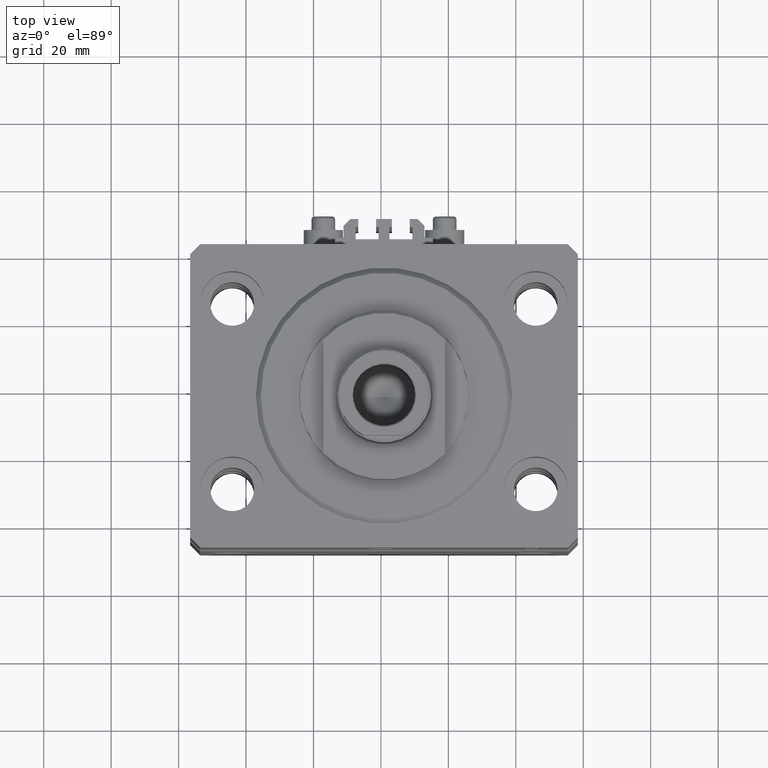
[diagram: clean part render]
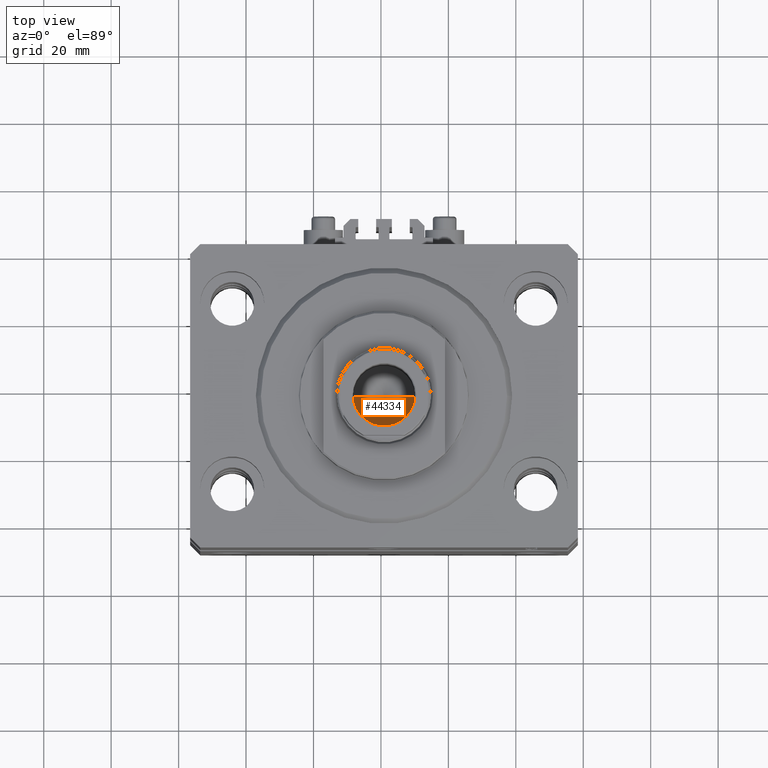
[diagram: same view with one face highlighted and labeled with its STEP entity id]
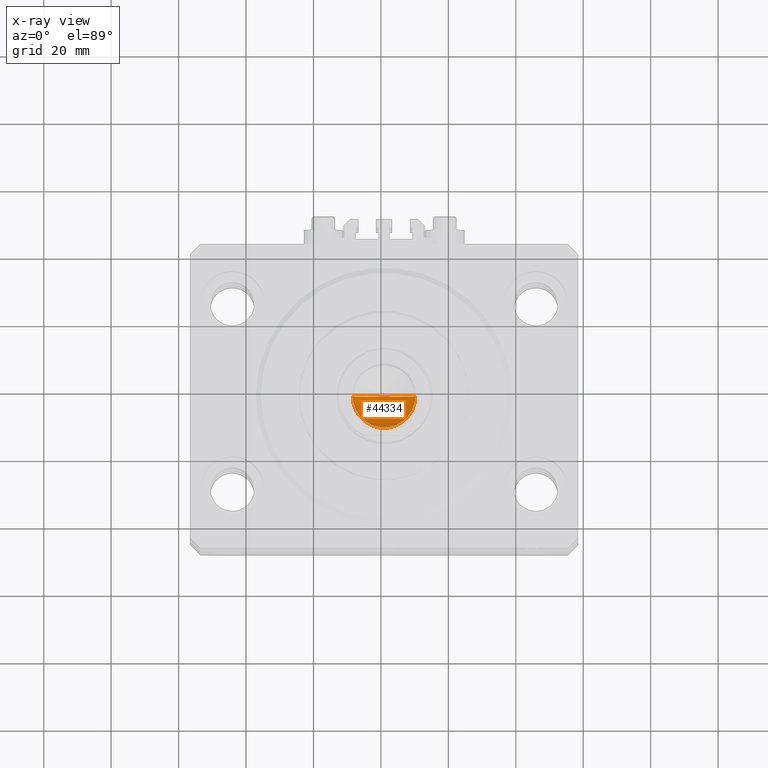
[diagram: x-ray of the same camera — body ghosted, the highlighted face saturated]
A machine part, top view. The second image highlights one B-rep face of the part: STEP entity #44334.
The next image is the same camera in x-ray: the body ghosted, the highlighted face saturated — about 8% of this face is hidden behind the body in this view.
In plain terms, the highlighted conical surface has half-angle 59 deg.
Its self-contained STEP definition (entity closure, byte-faithful):
#354 = ORIENTED_EDGE ( 'NONE', *, *, #22208, .T. ) ;
#1421 = EDGE_LOOP ( 'NONE', ( #24898, #14632, #354 ) ) ;
#1604 = VERTEX_POINT ( 'NONE', #9245 ) ;
#2183 = CARTESIAN_POINT ( 'NONE',  ( -9.249999999999994671, 1.132798289211300909E-15, 102.0999999999999943 ) ) ;
#2649 = CARTESIAN_POINT ( 'NONE',  ( 0.000000000000000000, 0.000000000000000000, 102.0999999999999943 ) ) ;
#3955 = DIRECTION ( 'NONE',  ( -0.8571673007021117785, 1.049727191138617956E-16, 0.5150380749100550437 ) ) ;
#6422 = CARTESIAN_POINT ( 'NONE',  ( 9.249999999999994671, 0.000000000000000000, 102.0999999999999943 ) ) ;
#6777 = CARTESIAN_POINT ( 'NONE',  ( 9.249999999999994671, 0.000000000000000000, 102.0999999999999943 ) ) ;
#9245 = CARTESIAN_POINT ( 'NONE',  ( -1.046994375366439223E-14, 0.000000000000000000, 96.54203927399505858 ) ) ;
#9812 = AXIS2_PLACEMENT_3D ( 'NONE', #39189, #19335, #42965 ) ;
#10664 = VECTOR ( 'NONE', #37598, 1000.000000000000000 ) ;
#13721 = DIRECTION ( 'NONE',  ( -0.000000000000000000, -0.000000000000000000, 1.000000000000000000 ) ) ;
#14632 = ORIENTED_EDGE ( 'NONE', *, *, #40554, .T. ) ;
#15817 = FACE_OUTER_BOUND ( 'NONE', #1421, .T. ) ;
#18626 = CONICAL_SURFACE ( 'NONE', #9812, 9.249999999999994671, 1.029744258676653423 ) ;
#19335 = DIRECTION ( 'NONE',  ( -0.000000000000000000, -0.000000000000000000, 1.000000000000000000 ) ) ;
#20846 = VERTEX_POINT ( 'NONE', #2183 ) ;
#20939 = AXIS2_PLACEMENT_3D ( 'NONE', #2649, #13721, #40370 ) ;
#22208 = EDGE_CURVE ( 'NONE', #20846, #32083, #36185, .T. ) ;
#23067 = CARTESIAN_POINT ( 'NONE',  ( -9.249999999999994671, 1.132798289211300909E-15, 102.0999999999999943 ) ) ;
#24898 = ORIENTED_EDGE ( 'NONE', *, *, #48992, .F. ) ;
#27106 = LINE ( 'NONE', #23067, #41403 ) ;
#32083 = VERTEX_POINT ( 'NONE', #6777 ) ;
#36185 = CIRCLE ( 'NONE', #20939, 9.249999999999994671 ) ;
#36849 = LINE ( 'NONE', #6422, #10664 ) ;
#37598 = DIRECTION ( 'NONE',  ( 0.8571673007021117785, 0.000000000000000000, 0.5150380749100550437 ) ) ;
#39189 = CARTESIAN_POINT ( 'NONE',  ( 0.000000000000000000, 0.000000000000000000, 102.0999999999999943 ) ) ;
#40370 = DIRECTION ( 'NONE',  ( 1.000000000000000000, 0.000000000000000000, 0.000000000000000000 ) ) ;
#40554 = EDGE_CURVE ( 'NONE', #1604, #20846, #27106, .T. ) ;
#41403 = VECTOR ( 'NONE', #3955, 1000.000000000000000 ) ;
#42965 = DIRECTION ( 'NONE',  ( 1.000000000000000000, 0.000000000000000000, 0.000000000000000000 ) ) ;
#44334 = ADVANCED_FACE ( 'NONE', ( #15817 ), #18626, .F. ) ;
#48992 = EDGE_CURVE ( 'NONE', #1604, #32083, #36849, .T. ) ;